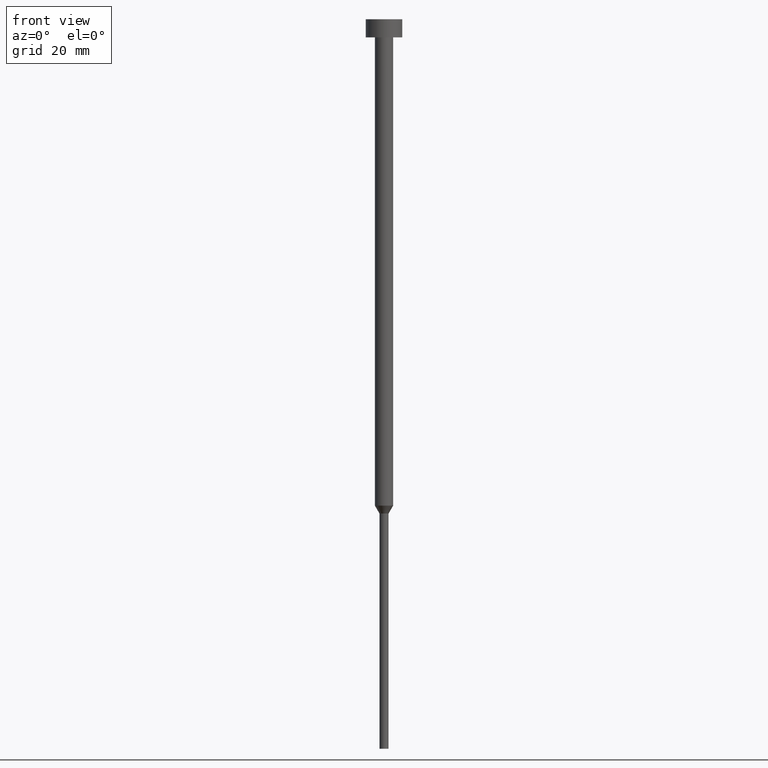
[diagram: clean part render]
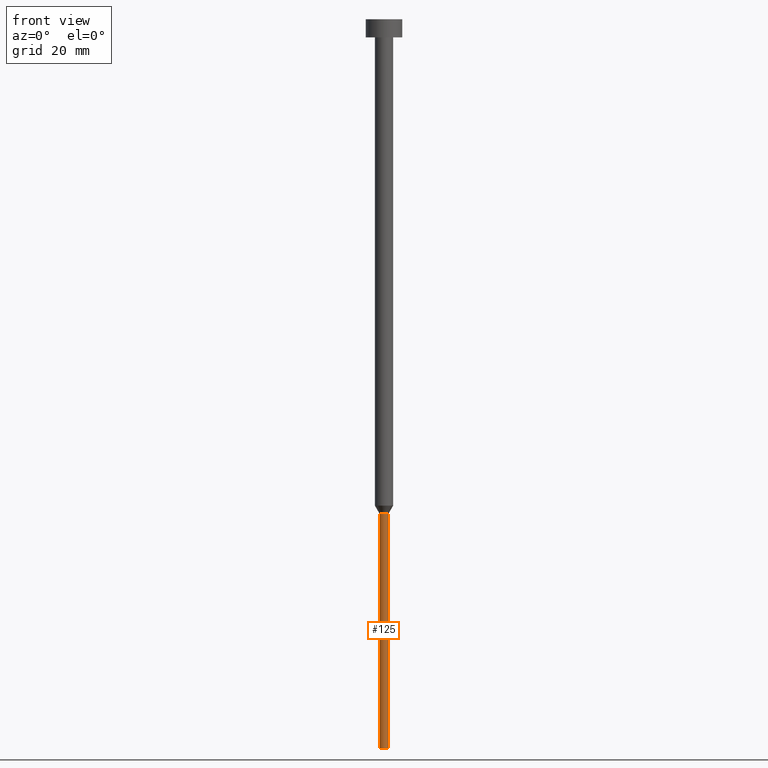
[diagram: same view with one face highlighted and labeled with its STEP entity id]
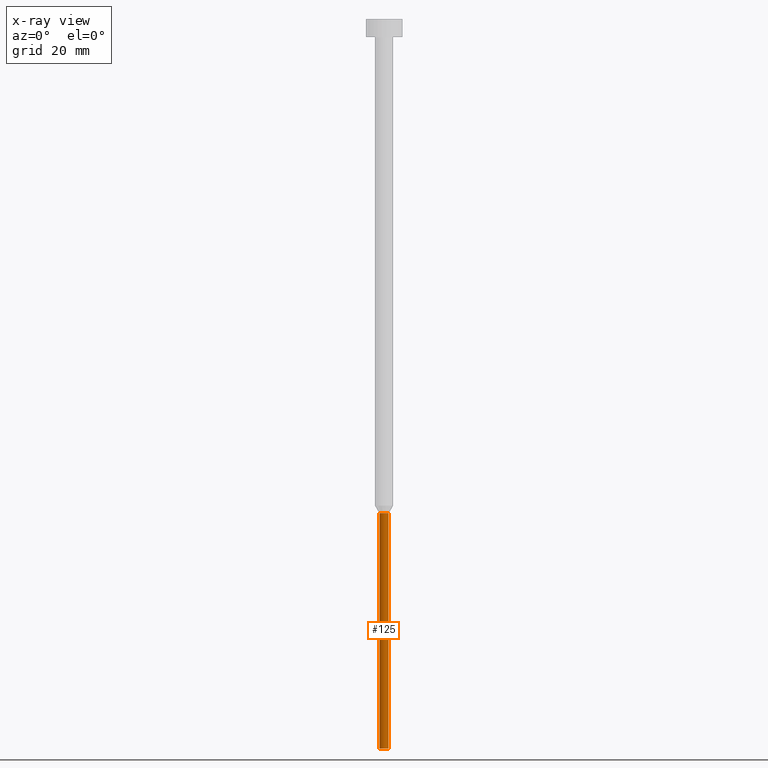
[diagram: x-ray of the same camera — body ghosted, the highlighted face saturated]
A machine part, front view. The second image highlights one B-rep face of the part: STEP entity #125.
The next image is the same camera in x-ray: the body ghosted, the highlighted face saturated — about 0% of this face is hidden behind the body in this view.
In plain terms, the highlighted cylindrical surface (edge-blend (fillet) strip) has radius 0.75 mm, axis along (-0, -0, 1).
Its self-contained STEP definition (entity closure, byte-faithful):
#15 = CIRCLE ( 'NONE', #55, 0.7500000000000000000 ) ;
#23 = ORIENTED_EDGE ( 'NONE', *, *, #301, .F. ) ;
#33 = CARTESIAN_POINT ( 'NONE',  ( -0.7500000000000000000, 9.184850993605149670E-17, -81.29903810567665801 ) ) ;
#54 = DIRECTION ( 'NONE',  ( 1.000000000000000000, 0.000000000000000000, 0.000000000000000000 ) ) ;
#55 = AXIS2_PLACEMENT_3D ( 'NONE', #350, #349, #54 ) ;
#66 = DIRECTION ( 'NONE',  ( 1.000000000000000000, 0.000000000000000000, 0.000000000000000000 ) ) ;
#73 = VERTEX_POINT ( 'NONE', #33 ) ;
#80 = VECTOR ( 'NONE', #180, 1000.000000000000000 ) ;
#85 = LINE ( 'NONE', #266, #220 ) ;
#96 = CYLINDRICAL_SURFACE ( 'NONE', #296, 0.7500000000000000000 ) ;
#106 = VERTEX_POINT ( 'NONE', #290 ) ;
#108 = ORIENTED_EDGE ( 'NONE', *, *, #140, .F. ) ;
#125 = ADVANCED_FACE ( 'NONE', ( #338 ), #96, .T. ) ;
#128 = ORIENTED_EDGE ( 'NONE', *, *, #309, .T. ) ;
#130 = VERTEX_POINT ( 'NONE', #294 ) ;
#140 = EDGE_CURVE ( 'NONE', #73, #106, #15, .T. ) ;
#171 = AXIS2_PLACEMENT_3D ( 'NONE', #318, #226, #224 ) ;
#180 = DIRECTION ( 'NONE',  ( -0.000000000000000000, -0.000000000000000000, 1.000000000000000000 ) ) ;
#206 = VERTEX_POINT ( 'NONE', #256 ) ;
#217 = CARTESIAN_POINT ( 'NONE',  ( 0.000000000000000000, 0.000000000000000000, 0.000000000000000000 ) ) ;
#220 = VECTOR ( 'NONE', #239, 1000.000000000000000 ) ;
#224 = DIRECTION ( 'NONE',  ( 1.000000000000000000, 0.000000000000000000, 0.000000000000000000 ) ) ;
#226 = DIRECTION ( 'NONE',  ( -0.000000000000000000, -0.000000000000000000, 1.000000000000000000 ) ) ;
#239 = DIRECTION ( 'NONE',  ( -0.000000000000000000, -0.000000000000000000, 1.000000000000000000 ) ) ;
#248 = EDGE_LOOP ( 'NONE', ( #23, #346, #128, #108 ) ) ;
#256 = CARTESIAN_POINT ( 'NONE',  ( 0.7500000000000000000, 0.000000000000000000, -120.0000000000000000 ) ) ;
#266 = CARTESIAN_POINT ( 'NONE',  ( -0.7500000000000000000, 9.184850993605149670E-17, 0.000000000000000000 ) ) ;
#290 = CARTESIAN_POINT ( 'NONE',  ( 0.7500000000000000000, 0.000000000000000000, -81.29903810567665801 ) ) ;
#294 = CARTESIAN_POINT ( 'NONE',  ( -0.7500000000000000000, 9.184850993605149670E-17, -120.0000000000000000 ) ) ;
#296 = AXIS2_PLACEMENT_3D ( 'NONE', #217, #321, #66 ) ;
#301 = EDGE_CURVE ( 'NONE', #130, #73, #85, .T. ) ;
#309 = EDGE_CURVE ( 'NONE', #206, #106, #323, .T. ) ;
#318 = CARTESIAN_POINT ( 'NONE',  ( 0.000000000000000000, 0.000000000000000000, -120.0000000000000000 ) ) ;
#321 = DIRECTION ( 'NONE',  ( -0.000000000000000000, -0.000000000000000000, 1.000000000000000000 ) ) ;
#323 = LINE ( 'NONE', #339, #80 ) ;
#338 = FACE_OUTER_BOUND ( 'NONE', #248, .T. ) ;
#339 = CARTESIAN_POINT ( 'NONE',  ( 0.7500000000000000000, 0.000000000000000000, 0.000000000000000000 ) ) ;
#345 = CIRCLE ( 'NONE', #171, 0.7500000000000000000 ) ;
#346 = ORIENTED_EDGE ( 'NONE', *, *, #354, .T. ) ;
#349 = DIRECTION ( 'NONE',  ( -0.000000000000000000, -0.000000000000000000, 1.000000000000000000 ) ) ;
#350 = CARTESIAN_POINT ( 'NONE',  ( 0.000000000000000000, 0.000000000000000000, -81.29903810567665801 ) ) ;
#354 = EDGE_CURVE ( 'NONE', #130, #206, #345, .T. ) ;